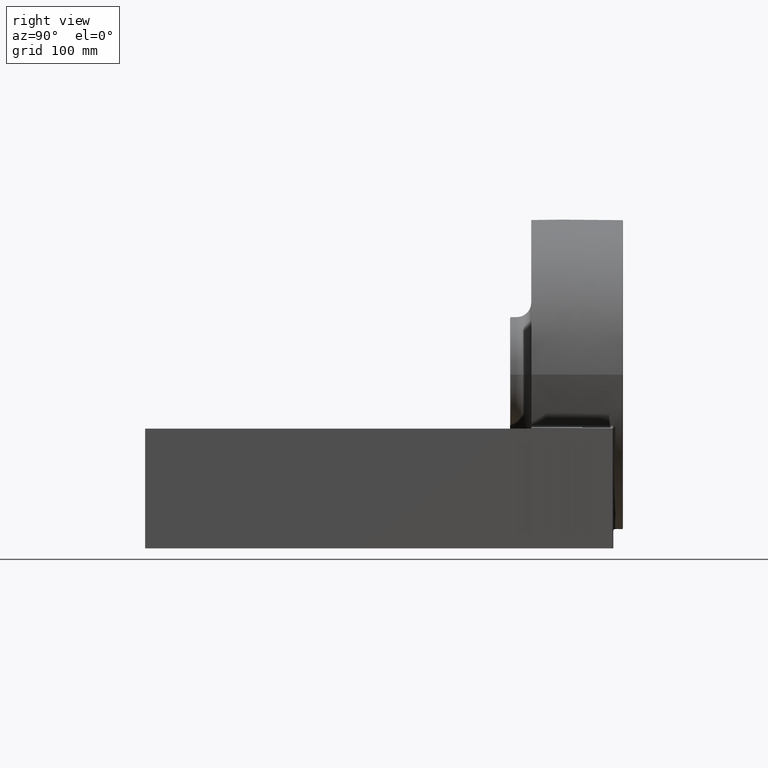
[diagram: clean part render]
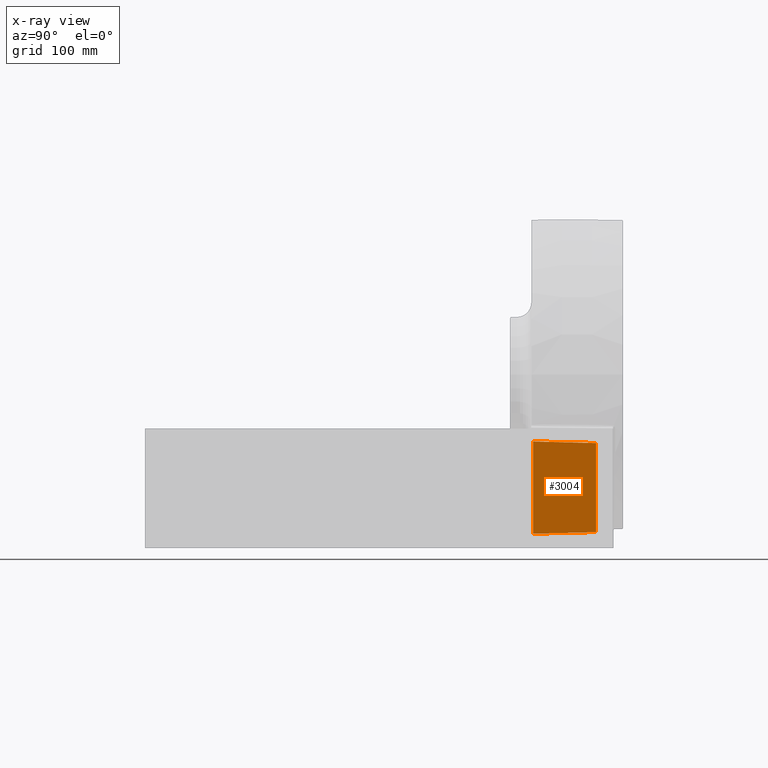
[diagram: x-ray — body ghosted, one internal face saturated and labeled with its STEP entity id]
A machine part, right view, then the same camera in x-ray: the body is ghosted and one INTERNAL B-rep face — a face not visible from any outside direction — is saturated and labeled: STEP entity #3004.
In plain terms, the highlighted planar face has unit normal (0.9997, -0.0262, 0).
Its self-contained STEP definition (entity closure, byte-faithful):
#41 = LINE ( 'NONE', #3460, #4627 ) ;
#227 = AXIS2_PLACEMENT_3D ( 'NONE', #3818, #2746, #3917 ) ;
#751 = DIRECTION ( 'NONE',  ( 0.02616798426497925906, 0.9993150019883697555, 0.02616798426497939783 ) ) ;
#812 = LINE ( 'NONE', #1311, #2407 ) ;
#865 = VERTEX_POINT ( 'NONE', #7623 ) ;
#1311 = CARTESIAN_POINT ( 'NONE',  ( 105.0703195936203969, 402.6852969387533676, -108.9313937815018249 ) ) ;
#1630 = CARTESIAN_POINT ( 'NONE',  ( 106.7578840827121098, 467.1307847415394008, -15.01438694537536556 ) ) ;
#1785 = ORIENTED_EDGE ( 'NONE', *, *, #10685, .T. ) ;
#2255 = FACE_OUTER_BOUND ( 'NONE', #9733, .T. ) ;
#2407 = VECTOR ( 'NONE', #751, 1000.000000000000227 ) ;
#2522 = DIRECTION ( 'NONE',  ( -2.531555802407394068E-16, -3.158525108795066252E-32, 1.000000000000000000 ) ) ;
#2541 = CARTESIAN_POINT ( 'NONE',  ( 106.7578840827121098, 467.1307847415394008, -6.309902495942154133 ) ) ;
#2561 = LINE ( 'NONE', #2541, #5733 ) ;
#2603 = ORIENTED_EDGE ( 'NONE', *, *, #4960, .T. ) ;
#2746 = DIRECTION ( 'NONE',  ( 0.9996573249755573709, -0.02617694830787308663, 2.530688301460926535E-16 ) ) ;
#3004 = ADVANCED_FACE ( 'NONE', ( #2255 ), #8530, .T. ) ;
#3460 = CARTESIAN_POINT ( 'NONE',  ( 105.0510009081078238, 401.9475461033842976, -109.2805307356054243 ) ) ;
#3536 = ORIENTED_EDGE ( 'NONE', *, *, #6398, .T. ) ;
#3818 = CARTESIAN_POINT ( 'NONE',  ( 105.0000000000000426, 399.9999000000000251, -6.309902495942154133 ) ) ;
#3917 = DIRECTION ( 'NONE',  ( 0.02617694830787308316, 0.9996573249755572599, 0.0000000000000000000 ) ) ;
#4002 = VECTOR ( 'NONE', #9110, 1000.000000000000227 ) ;
#4436 = VERTEX_POINT ( 'NONE', #1630 ) ;
#4627 = VECTOR ( 'NONE', #5677, 1000.000000000000000 ) ;
#4666 = EDGE_CURVE ( 'NONE', #865, #9722, #812, .T. ) ;
#4960 = EDGE_CURVE ( 'NONE', #4436, #8809, #8989, .T. ) ;
#5677 = DIRECTION ( 'NONE',  ( 2.531555802407394068E-16, 3.158525108795066252E-32, -1.000000000000000000 ) ) ;
#5733 = VECTOR ( 'NONE', #2522, 1000.000000000000000 ) ;
#6398 = EDGE_CURVE ( 'NONE', #8809, #865, #41, .T. ) ;
#6643 = CARTESIAN_POINT ( 'NONE',  ( 105.0510009081077953, 401.9475461033842976, -13.30750377077104218 ) ) ;
#7623 = CARTESIAN_POINT ( 'NONE',  ( 105.0510009081078238, 401.9475461033842976, -108.9507124670143980 ) ) ;
#8530 = PLANE ( 'NONE',  #227 ) ;
#8809 = VERTEX_POINT ( 'NONE', #6643 ) ;
#8895 = ORIENTED_EDGE ( 'NONE', *, *, #4666, .T. ) ;
#8989 = LINE ( 'NONE', #9047, #4002 ) ;
#9047 = CARTESIAN_POINT ( 'NONE',  ( 104.9952432223110748, 399.8182459888395215, -13.25174608497430029 ) ) ;
#9110 = DIRECTION ( 'NONE',  ( -0.02616798426497926947, -0.9993150019883697555, 0.02616798426497939090 ) ) ;
#9722 = VERTEX_POINT ( 'NONE', #9828 ) ;
#9733 = EDGE_LOOP ( 'NONE', ( #2603, #3536, #8895, #1785 ) ) ;
#9828 = CARTESIAN_POINT ( 'NONE',  ( 106.7578840827121383, 467.1307847415394008, -107.2438292924100836 ) ) ;
#10685 = EDGE_CURVE ( 'NONE', #9722, #4436, #2561, .T. ) ;